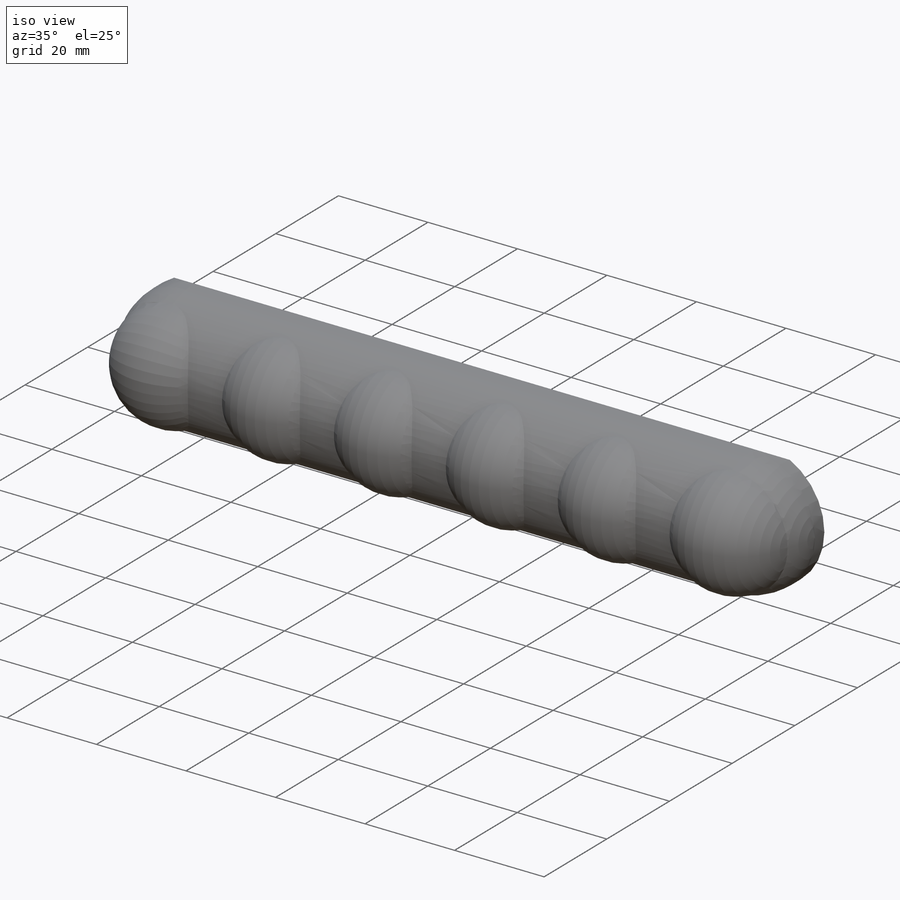
[diagram: iso view]
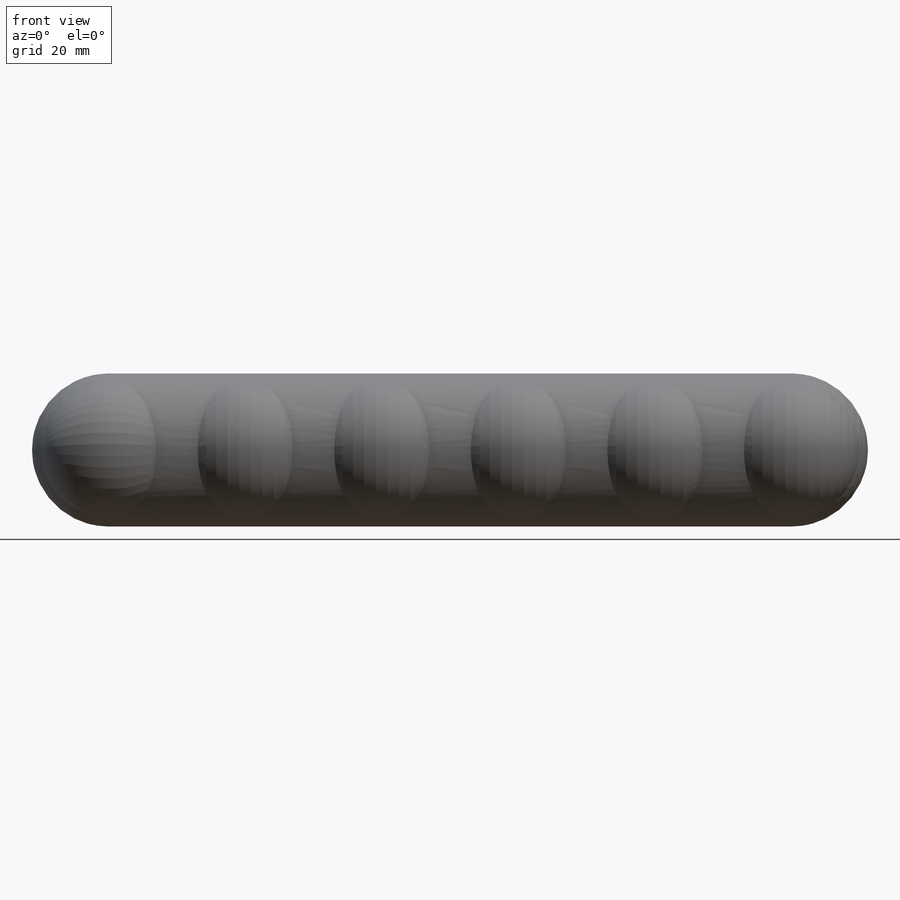
[diagram: front view]
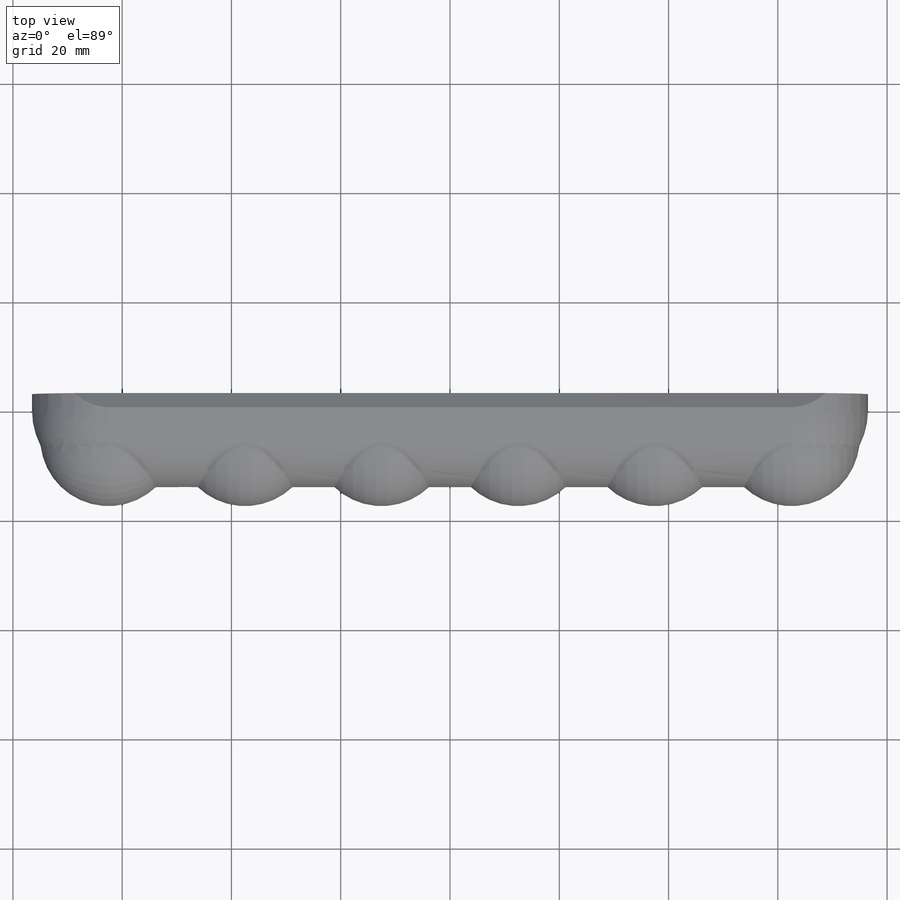
[diagram: top view]
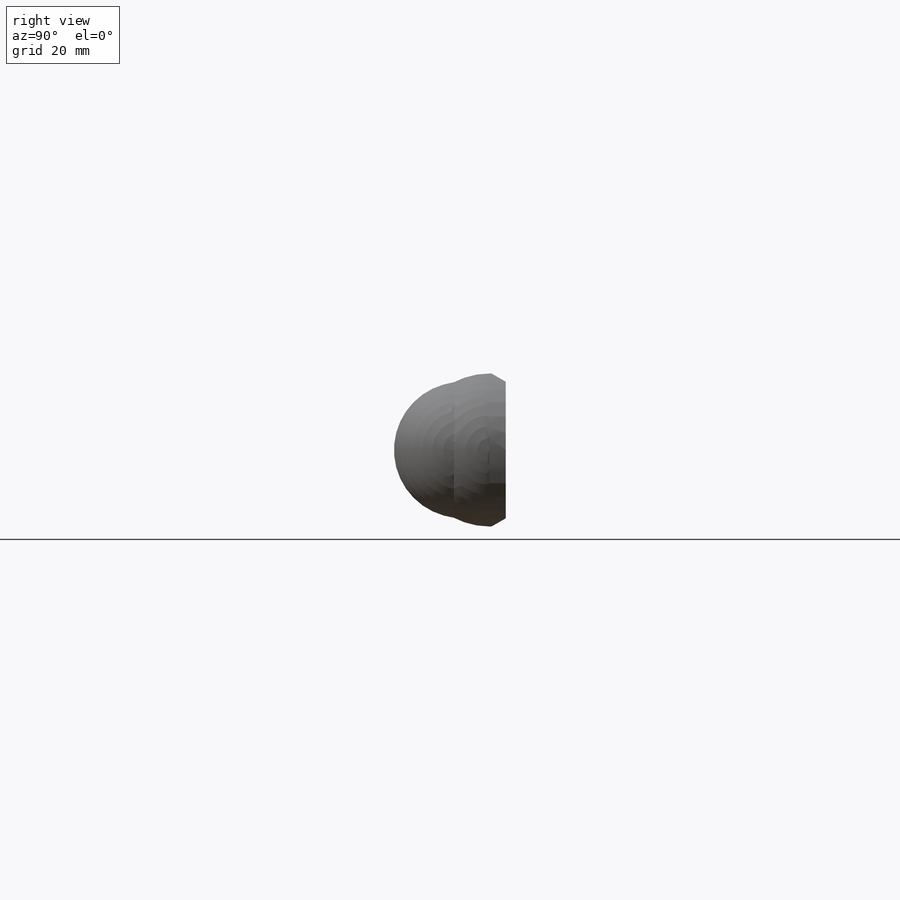
[diagram: right view]
SOLIDWORKS PART (.sldprt)
format: sldprt  version: not decoded by parser v0  size: 317,440 bytes
history: native  units: mm
features: sketch x6, cut_extrude x3, revolve x2, material x1, plane x1, pattern_linear x1, extrude x1 (+11 scaffold rows collapsed)
feature tree (26):
  scaffold x11  (default folders/planes/origin — collapsed)
  material  "Material <not specified>"
  sketch  "Sketch1"  dims[D2=14.0mm D1=125.0mm]
  revolve  "Revolve1"  Angle=180deg
  plane  "Plane1"  Offset=5mm
  sketch  "Sketch3"  dims[D1=25.0mm]
  revolve  "Revolve2"  Angle=180deg
  pattern_linear  "LPattern1"  Count1=6 Count2=1 Spacing1=25mm Spacing2=10mm
  sketch  "Sketch4"  dims[D1=0.0mm]
  extrude  "Boss-Extrude1"  Depth=3mm
  sketch  "Sketch5"  dims[c1.D1=3.0mm c1.D2=12.5mm c2.D1=~3.354102mm c3.D1=30.0deg c4.D1=~2.601337mm c5.D1=~29.874955deg c5.D3=~0.652267mm c5.D4=~2.601337mm c6.D4=~29.968886deg]
  cut_extrude  "Cut-Extrude4"  [1 undecoded]
  sketch  "Sketch6"  dims[D1=5.2mm]
  cut_extrude  "Cut-Extrude5"  Depth=8mm
  sketch  "Sketch7"  dims[D1=8.0mm D2=12.0mm]
  cut_extrude  "Cut-Extrude6"  Depth=8mm
decode coverage: 12 of 13 modeling features carry decoded parameters
note: ~ marks probable driven/reference dimensions
note: 1 parameter value undecoded
note: suppression state not decoded; provenance and decode notes live in map.json
